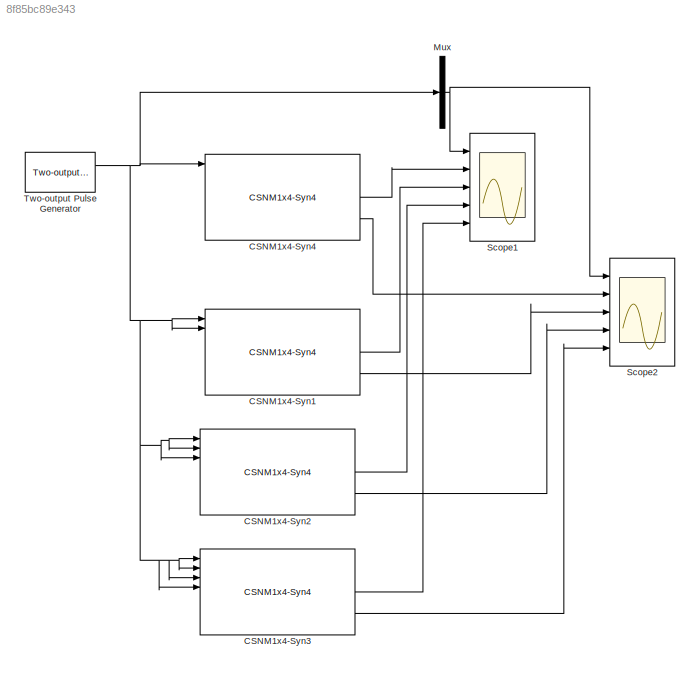
MODEL slx_8f85bc89e343
KIND model
CONFIG AbsTol = auto
CONFIG EnableMultiTasking = on
CONFIG FixedStep = auto
CONFIG MaxStep = auto
CONFIG MinStep = auto
CONFIG RelTol = 1e-3
CONFIG SampleTimeConstraint = Unconstrained
CONFIG SolverName = ode45
CONFIG StartTime = 0.0
CONFIG StopTime = 2
BLOCK [Reference] CSNM1x4-Syn1  REF=NeuroModelerLibrary/Sized Cells/CSNM1x4-Syn4
  NameLocation = top
  Ports = [8, 3]
  SourceBlock = NeuroModelerLibrary/Sized Cells/CSNM1x4-Syn4
  SourceType = SubSystem
BLOCK [Reference] CSNM1x4-Syn2  REF=NeuroModelerLibrary/Sized Cells/CSNM1x4-Syn4
  NameLocation = top
  Ports = [8, 3]
  SourceBlock = NeuroModelerLibrary/Sized Cells/CSNM1x4-Syn4
  SourceType = SubSystem
BLOCK [Reference] CSNM1x4-Syn3  REF=NeuroModelerLibrary/Sized Cells/CSNM1x4-Syn4
  NameLocation = top
  Ports = [8, 3]
  SourceBlock = NeuroModelerLibrary/Sized Cells/CSNM1x4-Syn4
  SourceType = SubSystem
BLOCK [Reference] CSNM1x4-Syn4  REF=NeuroModelerLibrary/Sized Cells/CSNM1x4-Syn4
  NameLocation = top
  Ports = [8, 3]
  SourceBlock = NeuroModelerLibrary/Sized Cells/CSNM1x4-Syn4
  SourceType = SubSystem
BLOCK [Mux] Mux
  DisplayOption = bar
  Inputs = 1
  Ports = [1, 1]
BLOCK [Scope] Scope1
  Floating = off
  NumInputPorts = 5
  Ports = [5]
  ScopeSpecificationString = Simulink.scopes.TimeScopeBlockCfg('CurrentConfiguration', extmgr.ConfigurationSet(extmgr.Configuration('Core','General UI',true,'FigureColor',[1 1 1]),extmgr.Configuration('Core','Source UI',true),extmgr.Configuration('Sources','WiredSimulink',true,'DataLoggingSaveFormat','StructureWithTime','DataLoggingMaxPoints','5000000','DataLoggingLimitDataPoints',true,'DataLoggingDecimation','1','DataLogging...<+5071ch>
BLOCK [Scope] Scope2
  Floating = off
  NumInputPorts = 5
  Ports = [5]
  ScopeSpecificationString = Simulink.scopes.TimeScopeBlockCfg('CurrentConfiguration', extmgr.ConfigurationSet(extmgr.Configuration('Core','General UI',true,'FigureColor',[1 1 1]),extmgr.Configuration('Core','Source UI',true),extmgr.Configuration('Sources','WiredSimulink',true,'DataLoggingSaveFormat','StructureWithTime','DataLoggingMaxPoints','5000000','DataLoggingLimitDataPoints',true,'DataLoggingDecimation','1','DataLogging...<+5192ch>
BLOCK [Reference] Two-output Pulse Generator  REF=NeuroModelerLibrary/Support/Two-output
Pulse Generator
  Ports = [0, 2]
  SourceBlock = NeuroModelerLibrary/Support/Two-output\nPulse Generator
LINE CSNM1x4-Syn1:2 -> Scope1:3
LINE CSNM1x4-Syn1:3 -> Scope2:3
LINE CSNM1x4-Syn2:2 -> Scope1:4
LINE CSNM1x4-Syn2:3 -> Scope2:4
LINE CSNM1x4-Syn3:2 -> Scope1:5
LINE CSNM1x4-Syn3:3 -> Scope2:5
LINE CSNM1x4-Syn4:2 -> Scope1:2
LINE CSNM1x4-Syn4:3 -> Scope2:2
NET Mux:1 -> Scope1:1, Scope2:1
NET Two-output Pulse Generator:1 -> CSNM1x4-Syn1:1, CSNM1x4-Syn1:2, CSNM1x4-Syn2:1, CSNM1x4-Syn2:2, CSNM1x4-Syn2:3, CSNM1x4-Syn3:1, CSNM1x4-Syn3:2, CSNM1x4-Syn3:3, CSNM1x4-Syn3:4, CSNM1x4-Syn4:1, Mux:1
note: NET lines group one-source signal fan-out (src -> all destinations, sorted); 1:1 wires keep LINE
